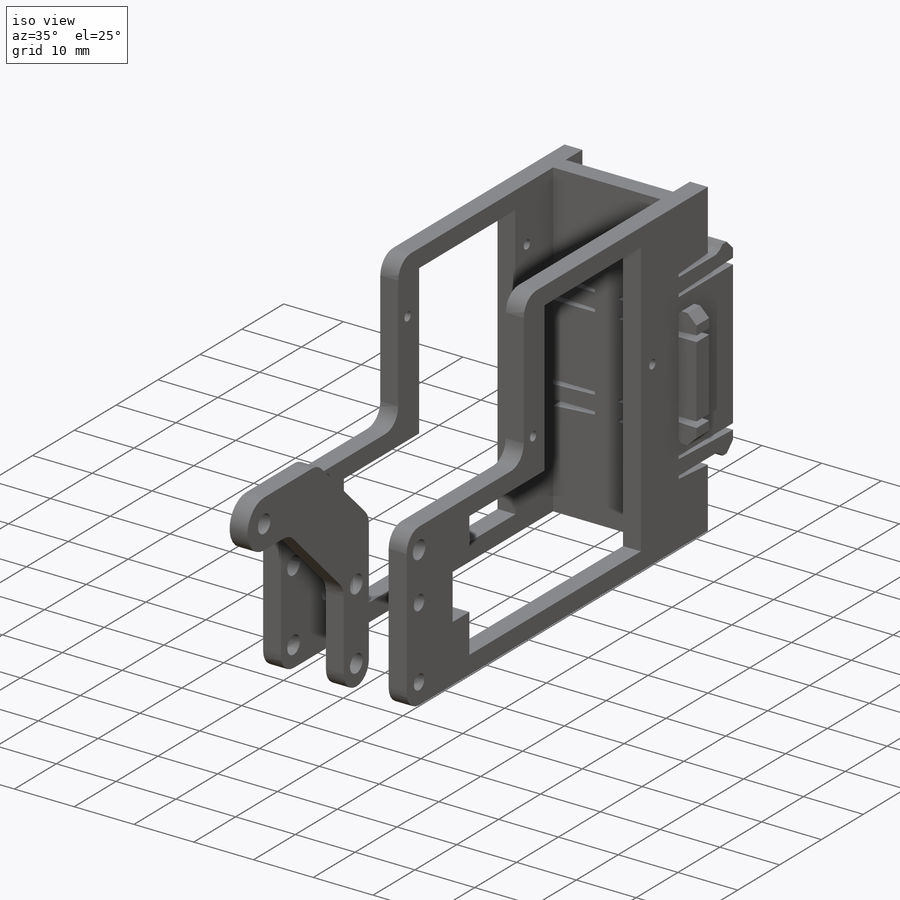
[diagram: iso view]
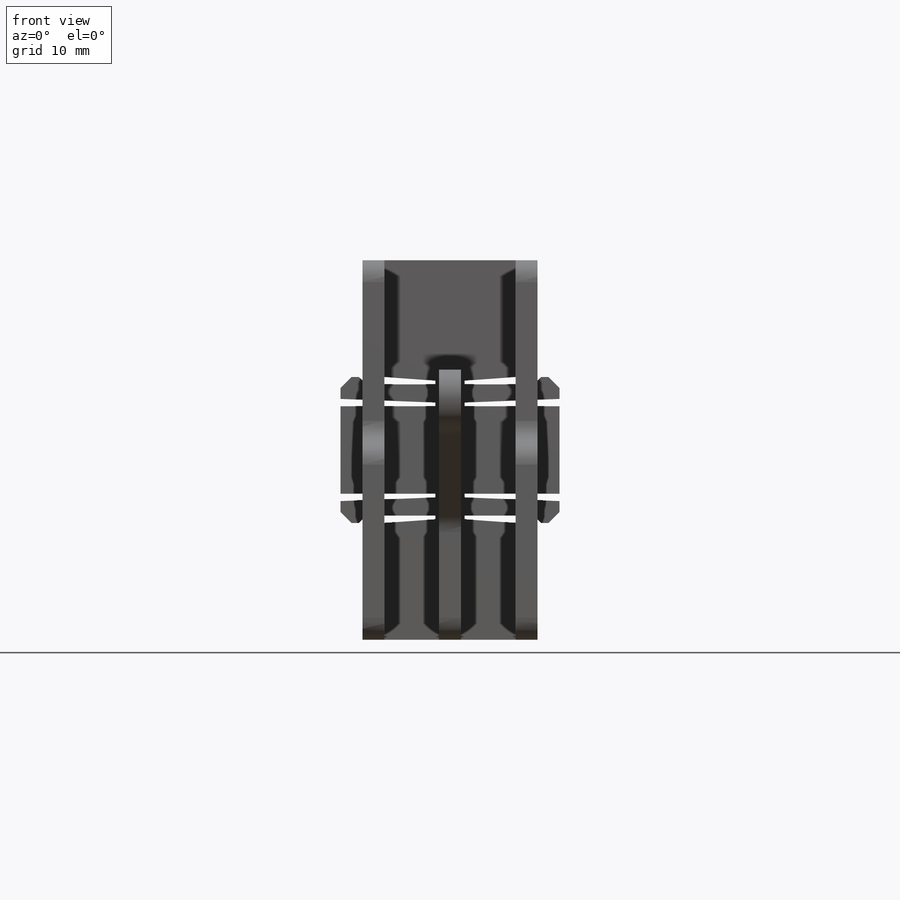
[diagram: front view]
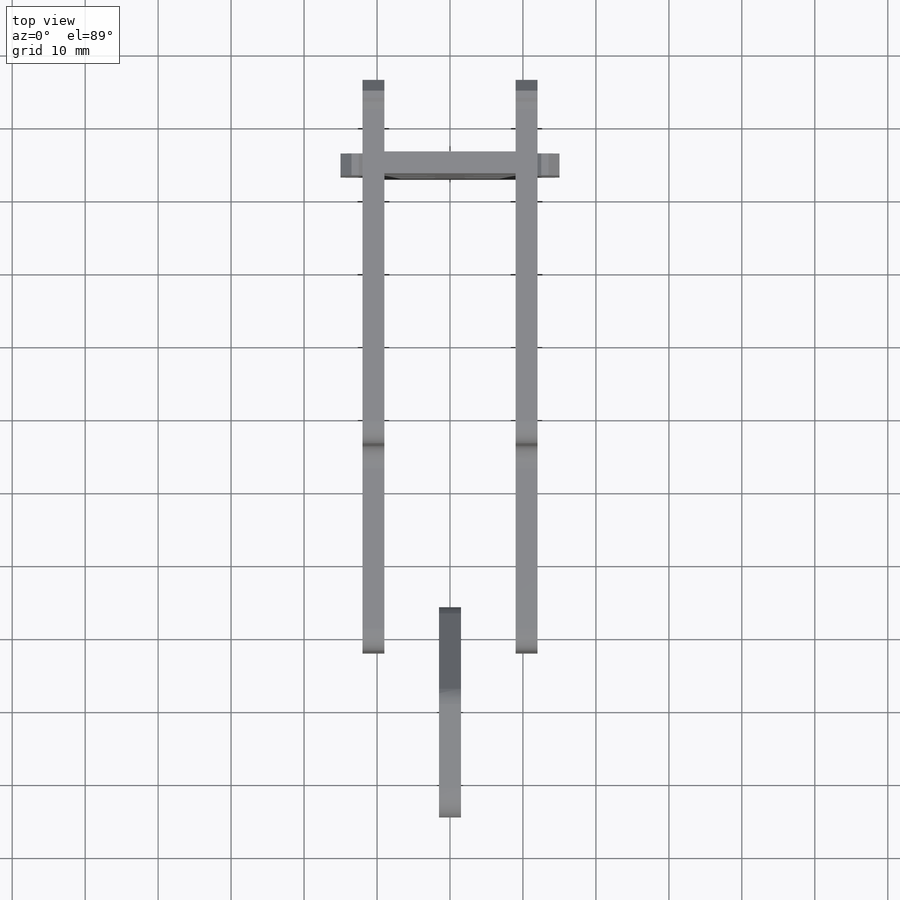
[diagram: top view]
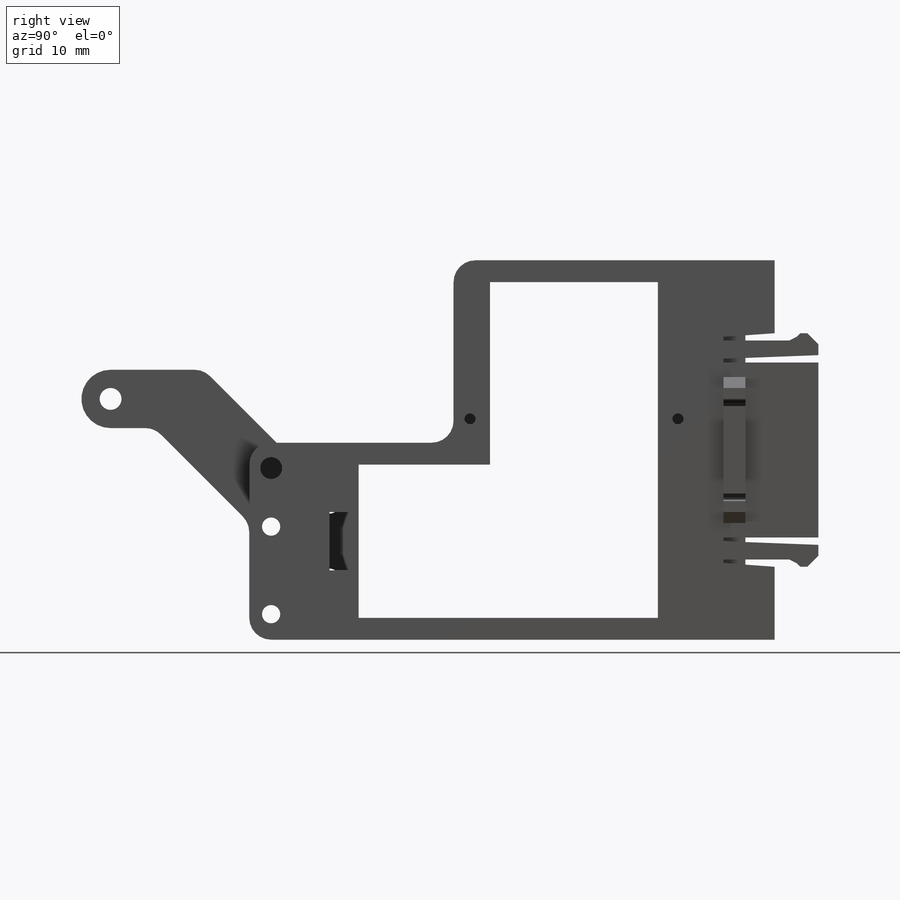
[diagram: right view]
SOLIDWORKS PART (.sldprt)
format: sldprt  version: not decoded by parser v0  size: 680,960 bytes
history: native  units: mm
features: sketch x4, extrude x4, plane x3, fillet x3, material x1 (+12 scaffold rows collapsed)
feature tree (27):
  scaffold x12  (default folders/planes/origin — collapsed)
  material  "Lasercut ABS"
  plane  "Plane1"  Offset=9mm
  plane  "Plane2"  Offset=9mm
  sketch  "Sketch1"  dims[c1.D1=13.0mm c1.D2=0.5mm c1.D3=1.0mm c1.D4=1.5mm c1.D5=1.5mm c1.D6=0.5mm c1.D7=1.0mm c1.D8=7.0mm c1.D9=1.0mm c1.D10=0.5mm c1.D11=1.0mm c1.D12=1.5mm c1.D13=2.5mm c2.D1=13.0mm c2.D2=0.5mm c2.D3=1.0mm c2.D4=0.5mm c2.D5=1.0mm c2.D6=2.5mm c2.D7=1.5mm c2.D8=1.5mm c2.D9=1.5mm c2.D10=1.0mm c2.D11=0.5mm c2.D12=1.0mm c2.D13=7.0mm c3.D7=2.5mm c3.D15=1.5mm c3.D20=2.5mm c3.D9=2.5mm c4.D20=3.0mm c4.D1=10.0mm c4.D2=3.0mm c4.D3=3.0mm c4.D4=3.0mm c4.D5=41.0mm c4.D6=21.0mm c4.D8=10.0mm c4.D9=49.0mm c4.D10=3.0mm c4.D11=9.0mm c4.D12=23.0mm c4.D13=25.0mm c4.D14=3.0mm c4.D16=28.5mm c4.D17=18.75mm c4.D18=5.0mm c4.D19=3.0mm c5.D20=~5.453461mm c5.D21=20.0mm c5.D22=12.0mm c5.D23=3.0mm c5.D7=8.0mm c5.D8=4.0mm c5.D24=8.0mm]
  extrude  "Boss-Extrude1"  Depth=3mm
  sketch  "Sketch2"  dims[c1.D1=3.0mm c1.D5=2.5mm c2.D1=20.0mm c2.D2=6.25mm c2.D3=10.0mm c2.D4=49.0mm c3.D2=6.25mm]
  extrude  "Boss-Extrude2"  Depth=3mm
  plane  "Plane3"  Offset=0mm
  sketch  "Sketch3"
  extrude  "Boss-Extrude3"  Depth=3mm
  sketch  "Sketch4"  dims[c1.D1=3.0mm c1.D2=3.0mm c1.D3=4.0mm c1.D9=3.0mm c1.D4=34.0mm c1.D5=3.0mm c1.D6=~12.155328mm c2.D6=45.0deg c2.D7=16.0mm c2.D8=9.0mm c2.D9=3.0mm c2.D1=3.0mm]
  extrude  "Boss-Extrude4"  Depth=3mm
  fillet  "Fillet1"  Radius=3mm
  fillet  "Fillet2"  Radius=3mm
  fillet  "Fillet3"  Radius=3mm
decode coverage: 10 of 11 modeling features carry decoded parameters
note: ~ marks probable driven/reference dimensions
note: suppression state not decoded; provenance and decode notes live in map.json
